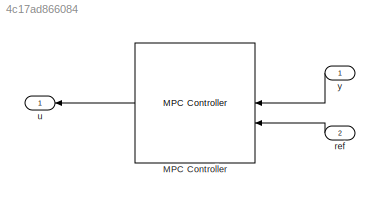
MODEL slx_4c17ad866084
KIND model
CONFIG AbsTol = auto
CONFIG EnableMultiTasking = off
CONFIG FixedStep = auto
CONFIG MaxStep = auto
CONFIG MinStep = auto
CONFIG RelTol = 1e-3
CONFIG SampleTimeConstraint = Unconstrained
CONFIG SolverName = FixedStepAuto
CONFIG StartTime = 0.0
CONFIG StopTime = 10.0
BLOCK [Reference] MPC Controller  REF=mpclib/MPC Controller  (lib defined in mdl_ae329e0e0455)
  NameLocation = top
  SCDEnableBlockLinearizationSpecification = on
  SourceBlock = mpclib/MPC Controller
  SourceType = MPC
BLOCK [Inport] ref
  NameLocation = top
  Port = 2
  PortDimensions = 2
BLOCK [Outport] u
  NameLocation = top
BLOCK [Inport] y
  NameLocation = top
  PortDimensions = 2
LINE MPC Controller:1 -> u:1
LINE ref:1 -> MPC Controller:2
LINE y:1 -> MPC Controller:1
